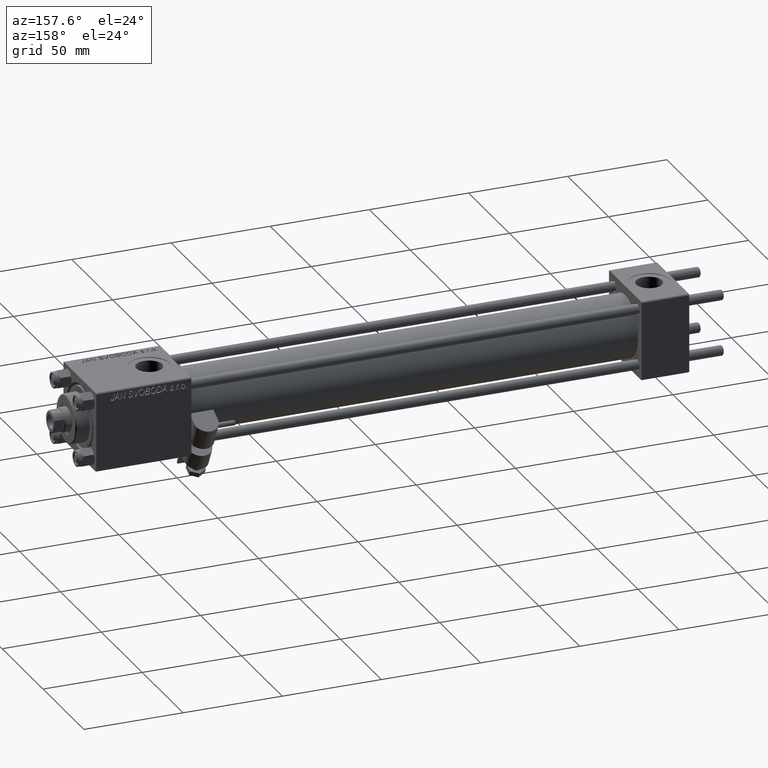
[diagram: clean part render]
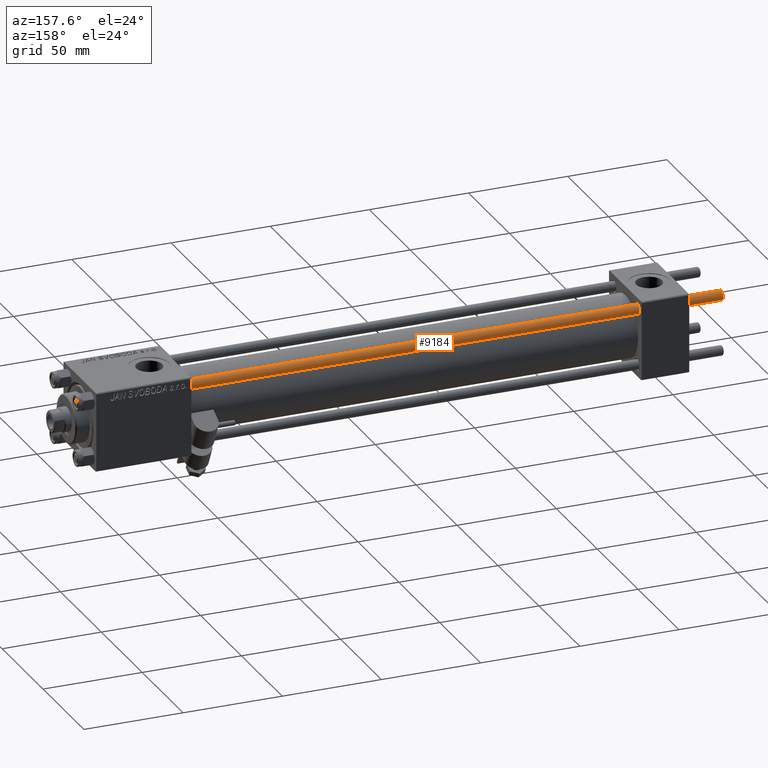
[diagram: same view with one face highlighted and labeled with its STEP entity id]
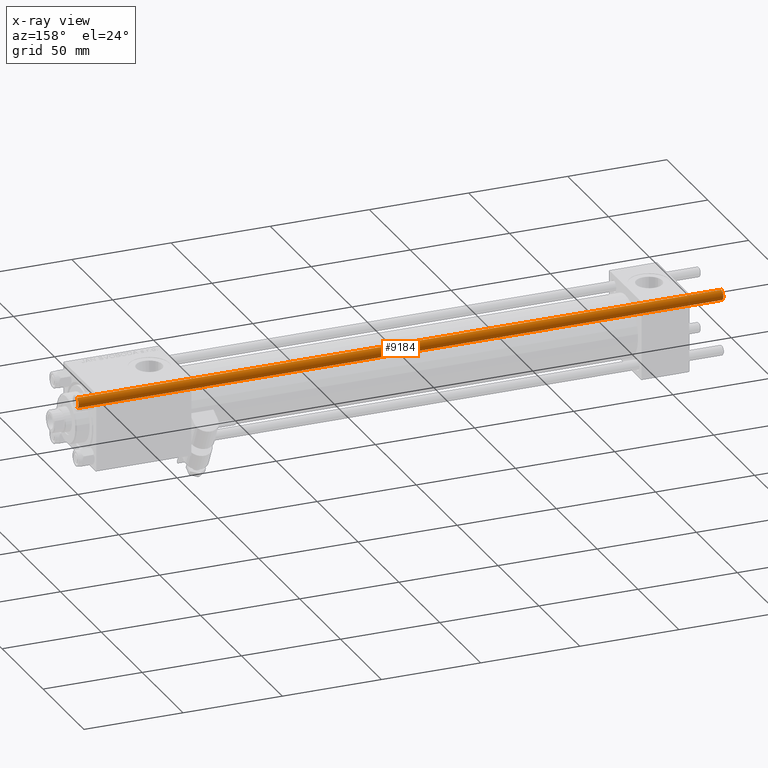
[diagram: x-ray of the same camera — body ghosted, the highlighted face saturated]
A machine part, auxiliary view. The second image highlights one B-rep face of the part: STEP entity #9184.
The next image is the same camera in x-ray: the body ghosted, the highlighted face saturated — about 0% of this face is hidden behind the body in this view.
In plain terms, the highlighted cylindrical surface (edge-blend (fillet) strip) has radius 2.5 mm, axis along (-1, -0, -0).
Its self-contained STEP definition (entity closure, byte-faithful):
#1040 = CIRCLE ( 'NONE', #14701, 2.500000000000000000 ) ;
#2619 = DIRECTION ( 'NONE',  ( 1.000000000000000000, 0.000000000000000000, 0.000000000000000000 ) ) ;
#3231 = CARTESIAN_POINT ( 'NONE',  ( 2.500000000000000000, 3.061616997868383141E-16, 0.4999999999999449329 ) ) ;
#9184 = ADVANCED_FACE ( 'NONE', ( #10423 ), #37942, .T. ) ;
#9630 = CARTESIAN_POINT ( 'NONE',  ( 0.000000000000000000, 0.000000000000000000, 326.0000000000000000 ) ) ;
#10338 = VECTOR ( 'NONE', #19251, 1000.000000000000000 ) ;
#10423 = FACE_OUTER_BOUND ( 'NONE', #25260, .T. ) ;
#14701 = AXIS2_PLACEMENT_3D ( 'NONE', #18126, #31182, #2619 ) ;
#15682 = VERTEX_POINT ( 'NONE', #41688 ) ;
#18126 = CARTESIAN_POINT ( 'NONE',  ( 0.000000000000000000, 0.000000000000000000, 325.5000000000000000 ) ) ;
#19251 = DIRECTION ( 'NONE',  ( -0.000000000000000000, -0.000000000000000000, -1.000000000000000000 ) ) ;
#21953 = DIRECTION ( 'NONE',  ( -0.000000000000000000, -0.000000000000000000, -1.000000000000000000 ) ) ;
#22722 = DIRECTION ( 'NONE',  ( -1.000000000000000000, 0.000000000000000000, 0.000000000000000000 ) ) ;
#22748 = LINE ( 'NONE', #29689, #30382 ) ;
#24564 = ORIENTED_EDGE ( 'NONE', *, *, #36487, .F. ) ;
#25260 = EDGE_LOOP ( 'NONE', ( #48898, #40361, #40630, #24564 ) ) ;
#25659 = DIRECTION ( 'NONE',  ( -0.000000000000000000, -0.000000000000000000, -1.000000000000000000 ) ) ;
#26470 = CIRCLE ( 'NONE', #33294, 2.500000000000000000 ) ;
#27510 = CARTESIAN_POINT ( 'NONE',  ( -2.500000000000000000, 0.000000000000000000, 326.0000000000000000 ) ) ;
#28310 = LINE ( 'NONE', #27510, #10338 ) ;
#29689 = CARTESIAN_POINT ( 'NONE',  ( 2.500000000000000000, 3.061616997868383141E-16, 326.0000000000000000 ) ) ;
#30382 = VECTOR ( 'NONE', #21953, 1000.000000000000000 ) ;
#31182 = DIRECTION ( 'NONE',  ( 0.000000000000000000, 0.000000000000000000, -1.000000000000000000 ) ) ;
#31487 = VERTEX_POINT ( 'NONE', #48128 ) ;
#33294 = AXIS2_PLACEMENT_3D ( 'NONE', #38249, #41714, #41979 ) ;
#34271 = EDGE_CURVE ( 'NONE', #41212, #47516, #26470, .T. ) ;
#36487 = EDGE_CURVE ( 'NONE', #31487, #47516, #28310, .T. ) ;
#37942 = CYLINDRICAL_SURFACE ( 'NONE', #38209, 2.500000000000000000 ) ;
#38209 = AXIS2_PLACEMENT_3D ( 'NONE', #9630, #25659, #22722 ) ;
#38249 = CARTESIAN_POINT ( 'NONE',  ( 0.000000000000000000, 0.000000000000000000, 0.4999999999999449329 ) ) ;
#38922 = EDGE_CURVE ( 'NONE', #31487, #15682, #1040, .T. ) ;
#40361 = ORIENTED_EDGE ( 'NONE', *, *, #51570, .T. ) ;
#40630 = ORIENTED_EDGE ( 'NONE', *, *, #34271, .T. ) ;
#41212 = VERTEX_POINT ( 'NONE', #3231 ) ;
#41688 = CARTESIAN_POINT ( 'NONE',  ( 2.500000000000000000, 3.061616997868383141E-16, 325.5000000000000000 ) ) ;
#41714 = DIRECTION ( 'NONE',  ( -0.000000000000000000, -0.000000000000000000, 1.000000000000000000 ) ) ;
#41979 = DIRECTION ( 'NONE',  ( 1.000000000000000000, 0.000000000000000000, 0.000000000000000000 ) ) ;
#46632 = CARTESIAN_POINT ( 'NONE',  ( -2.500000000000000000, 0.000000000000000000, 0.4999999999999449329 ) ) ;
#47516 = VERTEX_POINT ( 'NONE', #46632 ) ;
#48128 = CARTESIAN_POINT ( 'NONE',  ( -2.500000000000000000, 0.000000000000000000, 325.5000000000000000 ) ) ;
#48898 = ORIENTED_EDGE ( 'NONE', *, *, #38922, .T. ) ;
#51570 = EDGE_CURVE ( 'NONE', #15682, #41212, #22748, .T. ) ;